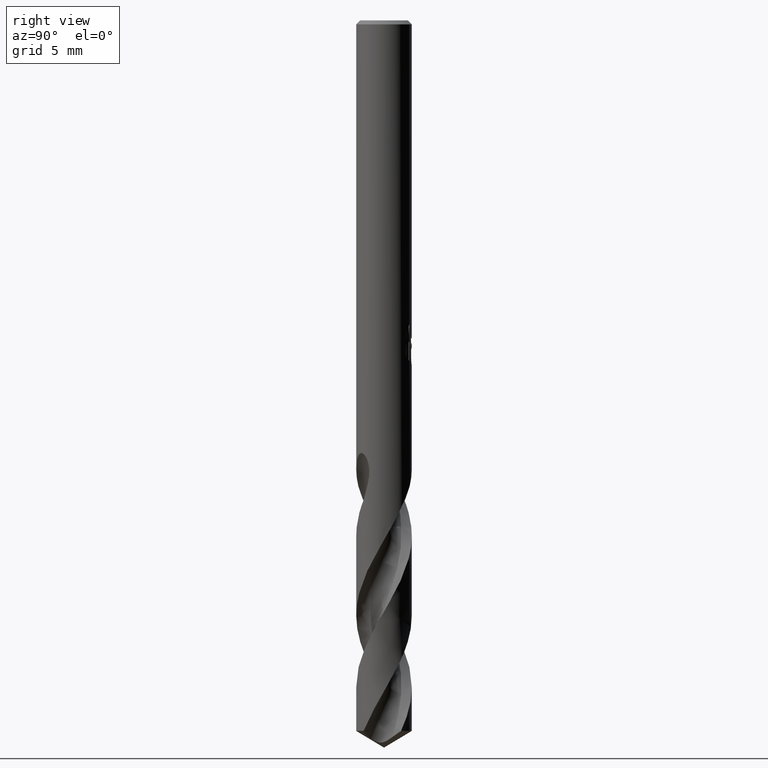
[diagram: clean part render]
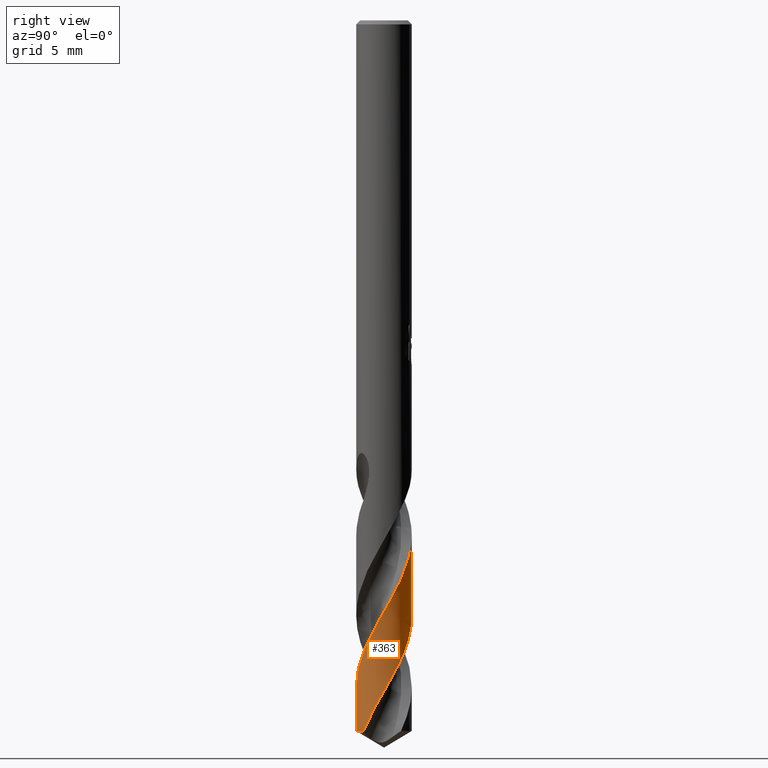
[diagram: same view with one face highlighted and labeled with its STEP entity id]
A machine part, right view. The second image highlights one B-rep face of the part: STEP entity #363.
In plain terms, the highlighted conical surface has half-angle 0 deg.
Its self-contained STEP definition (entity closure, byte-faithful):
#345=VERTEX_POINT('',#849);
#349=VERTEX_POINT('',#853);
#353=EDGE_CURVE('',#387,#587,#857,.T.);
#355=EDGE_CURVE('',#387,#345,#859,.T.);
#363=ADVANCED_FACE('',(#868),#869,.T.);
#387=VERTEX_POINT('',#896);
#431=EDGE_CURVE('',#549,#349,#942,.T.);
#549=VERTEX_POINT('',#1070);
#587=VERTEX_POINT('',#1108);
#659=EDGE_CURVE('',#549,#587,#1188,.T.);
#681=EDGE_CURVE('',#345,#349,#1210,.T.);
#849=CARTESIAN_POINT('',(2.57167334302699E-016,-2.1,-53.7381927000421));
#853=CARTESIAN_POINT('',(1.82200431887341E-012,-2.09997855743736,-50.4278485601338));
#857=B_SPLINE_CURVE_WITH_KNOTS('',3,(#3271,#3272,#3273,#3274,#3275,#3276,#3277,#3278,#3279,#3280,#3281,#3282,#3283,#3284,#3285,#3286,#3287,#3288,#3289,#3290,#3291,#3292,#3293,#3294,#3295,#3296,#3297,#3298,#3299,#3300,#3301,#3302,#3303,#3304,#3305,#3306,#3307,#3308,#3309,#3310,#3311,#3312,#3313,#3314,#3315,#3316,#3317,#3318,#3319,#3320,#3321,#3322,#3323,#3324,#3325,#3326,#3327,#3328,#3329,#3330,#3331,#3332,#3333,#3334,#3335,#3336,#3337,#3338,#3339,#3340),.UNSPECIFIED.,.F.,.F.,(4,2,2,2,2,2,2,2,2,2,2,2,2,2,2,2,2,2,2,2,2,2,2,2,2,2,2,2,2,2,2,2,2,2,4),(0.0,1.23625972363137,1.28090321122033,1.97511493861058,2.38408910006157,2.79224868021224,3.47174309092541,3.81203643253542,4.15063407136372,4.8304169893768,5.17084619576991,5.5096247447825,6.18969503314159,6.53030298078868,6.86930157082664,7.54976232916387,7.89055697128967,8.22975320694208,8.91059984857461,9.25161203651978,9.59105219882193,10.2723489847607,10.6107846645526,11.0201025744312,11.8424205708732,12.5061808573764,13.179368832994,13.7674621848638,14.8004683721552,14.9936553048343,15.72129262502,16.2673242447076,16.3183011420528,17.1083567396331,17.8964530474587),.UNSPECIFIED.);
#859=CIRCLE('',#3343,2.1);
#868=FACE_OUTER_BOUND('',#3373,.T.);
#869=CONICAL_SURFACE('',#3374,2.09995,6.47744214246915E-006);
#896=CARTESIAN_POINT('',(1.42649737981016,-1.54113763999026,-53.7381927000421));
#942=B_SPLINE_CURVE_WITH_KNOTS('',3,(#3818,#3819,#3820,#3821,#3822,#3823,#3824,#3825,#3826,#3827,#3828,#3829,#3830,#3831,#3832,#3833,#3834,#3835,#3836,#3837,#3838,#3839,#3840,#3841,#3842,#3843,#3844,#3845,#3846,#3847,#3848,#3849,#3850,#3851,#3852,#3853,#3854,#3855,#3856,#3857,#3858,#3859,#3860,#3861,#3862,#3863,#3864,#3865,#3866,#3867,#3868,#3869,#3870,#3871),.UNSPECIFIED.,.F.,.F.,(4,2,2,2,2,2,2,2,2,2,2,2,2,2,2,2,2,2,2,2,2,2,2,2,2,2,4),(0.0,0.503909517574547,1.13278829077596,1.95331177067228,2.76910831106794,3.17418707649119,3.98540677428027,4.80004577955351,5.61705185663753,5.8183623159792,6.62775541196274,7.44499739521171,8.26058420225335,8.66412829400666,9.4765814517851,10.2886939562712,11.1063820339444,11.2067594209016,12.0003007756899,12.7277738346585,13.3615420912618,14.4769491323318,14.8951127179593,15.6262919425889,16.1753774826645,17.0001347165072,17.824851671852),.UNSPECIFIED.);
#1070=CARTESIAN_POINT('',(1.05293163295112E-014,2.09990444357236,-38.9860072637856));
#1108=CARTESIAN_POINT('',(-2.17781760784545E-014,2.0999434989582,-45.0154529889263));
#1188=LINE('',#6280,#6281);
#1210=LINE('',#6460,#6461);
#3271=CARTESIAN_POINT('',(1.42649737981016,-1.54113763999026,-53.7381927000421));
#3272=CARTESIAN_POINT('',(1.57695963555635,-1.40186463124455,-53.3807301375969));
#3273=CARTESIAN_POINT('',(1.7062555505519,-1.24129005562574,-53.0293134088244));
#3274=CARTESIAN_POINT('',(1.81403925219164,-1.05796369571468,-52.6594367109165));
#3275=CARTESIAN_POINT('',(1.81775758434648,-1.05156196970137,-52.6465537487394));
#3276=CARTESIAN_POINT('',(1.87879164146405,-0.945189934888155,-52.4332394702534));
#3277=CARTESIAN_POINT('',(1.92791238908589,-0.840527310665277,-52.233800074898));
#3278=CARTESIAN_POINT('',(1.99198013464477,-0.6682865586203,-51.9157455633596));
#3279=CARTESIAN_POINT('',(2.01258782088006,-0.603374997257038,-51.7980066032897));
#3280=CARTESIAN_POINT('',(2.0473702503674,-0.472039582839114,-51.5622762667787));
#3281=CARTESIAN_POINT('',(2.0615318174246,-0.405726797584941,-51.4442099031526));
#3282=CARTESIAN_POINT('',(2.09066250884726,-0.227553599199668,-51.1305784846301));
#3283=CARTESIAN_POINT('',(2.09988608494626,-0.114830843375427,-50.9356141483307));
#3284=CARTESIAN_POINT('',(2.10002678837447,0.0548590835475572,-50.6418465286291));
#3285=CARTESIAN_POINT('',(2.09778345263759,0.111399100639425,-50.5439079627778));
#3286=CARTESIAN_POINT('',(2.08878005726924,0.2237543038227,-50.3481971422091));
#3287=CARTESIAN_POINT('',(2.08204988452058,0.279516763301855,-50.2503728275425));
#3288=CARTESIAN_POINT('',(2.05509471977611,0.446323205888845,-49.9568442262517));
#3289=CARTESIAN_POINT('',(2.02814153057,0.556162342423216,-49.7618710554556));
#3290=CARTESIAN_POINT('',(1.97453338299503,0.717152403648562,-49.4681023592493));
#3291=CARTESIAN_POINT('',(1.95449947977277,0.770067980556316,-49.3701643641222));
#3292=CARTESIAN_POINT('',(1.91037407762961,0.87378921552454,-49.17444414723));
#3293=CARTESIAN_POINT('',(1.88632768759972,0.924552416393177,-49.0766078489583));
#3294=CARTESIAN_POINT('',(1.80793616538315,1.07422082583746,-48.7830796763267));
#3295=CARTESIAN_POINT('',(1.74758831615771,1.16986200744209,-48.5881162668004));
#3296=CARTESIAN_POINT('',(1.64575179876274,1.3055876949273,-48.2943594173232));
#3297=CARTESIAN_POINT('',(1.60998647309493,1.34943891388325,-48.1964196709686));
#3298=CARTESIAN_POINT('',(1.53526775205499,1.43386168511031,-48.0006855539662));
#3299=CARTESIAN_POINT('',(1.49637147667734,1.47440516537982,-47.9028367517366));
#3300=CARTESIAN_POINT('',(1.37460150228181,1.5915475689214,-47.6092976514275));
#3301=CARTESIAN_POINT('',(1.28706411870783,1.66315261922107,-47.4143303821041));
#3302=CARTESIAN_POINT('',(1.14747920106533,1.75963568382289,-47.1205693453376));
#3303=CARTESIAN_POINT('',(1.09966634701289,1.78990047771627,-47.0226295929395));
#3304=CARTESIAN_POINT('',(1.00205445100528,1.84631023132247,-46.8268918827832));
#3305=CARTESIAN_POINT('',(0.95232019949124,1.87244537401513,-46.7290378468674));
#3306=CARTESIAN_POINT('',(0.799737721795813,1.94497735542391,-46.4355074330202));
#3307=CARTESIAN_POINT('',(0.694039658147727,1.98516645703929,-46.2405493357547));
#3308=CARTESIAN_POINT('',(0.531090396180356,2.03247074053207,-45.9467992665382));
#3309=CARTESIAN_POINT('',(0.476152580325007,2.0460344094639,-45.8488592648506));
#3310=CARTESIAN_POINT('',(0.365691400592973,2.06862591848246,-45.653114063439));
#3311=CARTESIAN_POINT('',(0.310234438902006,2.07766407194054,-45.5552520035473));
#3312=CARTESIAN_POINT('',(0.142543847878263,2.09813363650411,-45.2617240998199));
#3313=CARTESIAN_POINT('',(0.0295639793424587,2.1027768431097,-45.0667692658357));
#3314=CARTESIAN_POINT('',(-0.139510843648268,2.09605500249925,-44.7738377936024));
#3315=CARTESIAN_POINT('',(-0.195455306242008,2.09157633347284,-44.6767053777307));
#3316=CARTESIAN_POINT('',(-0.318391114097939,2.07676888609087,-44.4617573231829));
#3317=CARTESIAN_POINT('',(-0.385183478969309,2.0654229015879,-44.3437879224724));
#3318=CARTESIAN_POINT('',(-0.584355139379804,2.02158455836716,-43.9897319765663));
#3319=CARTESIAN_POINT('',(-0.714225411483557,1.97944115235996,-43.754999634814));
#3320=CARTESIAN_POINT('',(-0.940015267402545,1.881008153717,-43.3280489178754));
#3321=CARTESIAN_POINT('',(-1.03716150378071,1.82923487286746,-43.136664401182));
#3322=CARTESIAN_POINT('',(-1.22386191627464,1.71005898117993,-42.7525623711583));
#3323=CARTESIAN_POINT('',(-1.3129537391771,1.64264916213854,-42.5600619399365));
#3324=CARTESIAN_POINT('',(-1.46908480422251,1.5036541185711,-42.1977905447299));
#3325=CARTESIAN_POINT('',(-1.5371943000117,1.43393912739426,-42.0283045161195));
#3326=CARTESIAN_POINT('',(-1.71086181131527,1.22956418471215,-41.5627799455542));
#3327=CARTESIAN_POINT('',(-1.80512779756698,1.08641681909547,-41.2694085627594));
#3328=CARTESIAN_POINT('',(-1.89518658034008,0.904951786815829,-40.9172578281285));
#3329=CARTESIAN_POINT('',(-1.90870234775765,0.876083172479937,-40.8617259489846));
#3330=CARTESIAN_POINT('',(-1.96999561379248,0.737009407009232,-40.5973910990127));
#3331=CARTESIAN_POINT('',(-2.008990061536,0.622989305073594,-40.3895858146518));
#3332=CARTESIAN_POINT('',(-2.05981638624216,0.418282086342408,-40.0244444312444));
#3333=CARTESIAN_POINT('',(-2.07587731915084,0.329357783691682,-39.8682877421538));
#3334=CARTESIAN_POINT('',(-2.08712909993059,0.231475506267614,-39.6969370408301));
#3335=CARTESIAN_POINT('',(-2.08804213814309,0.223090127908711,-39.6822731464761));
#3336=CARTESIAN_POINT('',(-2.10230857101246,0.0842544404708582,-39.4397367522625));
#3337=CARTESIAN_POINT('',(-2.10347877727317,-0.0472285153184,-39.2136911345351));
#3338=CARTESIAN_POINT('',(-2.08122703491903,-0.308625523702236,-38.7590045767613));
#3339=CARTESIAN_POINT('',(-2.05803234571003,-0.437053267206126,-38.5306473119862));
#3340=CARTESIAN_POINT('',(-2.02318675090137,-0.562401559440356,-38.3048920733307));
#3343=AXIS2_PLACEMENT_3D('',#6977,#6978,#6979);
#3373=EDGE_LOOP('',(#6992,#6993,#6994,#6995,#6996));
#3374=AXIS2_PLACEMENT_3D('',#6997,#6998,#6999);
#3818=CARTESIAN_POINT('',(-0.390569997594199,2.06325839454656,-38.3042526002693));
#3819=CARTESIAN_POINT('',(-0.308017328981754,2.07888638085567,-38.4496991190551));
#3820=CARTESIAN_POINT('',(-0.224716797414764,2.08952430822793,-38.5951383021161));
#3821=CARTESIAN_POINT('',(-0.0367738697070147,2.10218470279236,-38.9223348095377));
#3822=CARTESIAN_POINT('',(0.0679943548223225,2.1014125386136,-39.1038875241836));
#3823=CARTESIAN_POINT('',(0.308420416765696,2.08161981318001,-39.5224390259626));
#3824=CARTESIAN_POINT('',(0.443125247664701,2.05716336438881,-39.7583208057964));
#3825=CARTESIAN_POINT('',(0.705158396426087,1.98263238876949,-40.2307940575602));
#3826=CARTESIAN_POINT('',(0.83190241340748,1.93288221021511,-40.4658503359491));
#3827=CARTESIAN_POINT('',(1.01307412056442,1.84061942340005,-40.8183438684808));
#3828=CARTESIAN_POINT('',(1.0716539799307,1.80713978555512,-40.9351926540121));
#3829=CARTESIAN_POINT('',(1.24236193159677,1.69835944984499,-41.2864610840434));
#3830=CARTESIAN_POINT('',(1.34899979233984,1.61496761456619,-41.5203685039314));
#3831=CARTESIAN_POINT('',(1.54524320152569,1.42839464262323,-41.9898332915733));
#3832=CARTESIAN_POINT('',(1.63425164408587,1.32562957329259,-42.2243981246286));
#3833=CARTESIAN_POINT('',(1.79139311721516,1.10412984761005,-42.6956394381113));
#3834=CARTESIAN_POINT('',(1.85914717509632,0.985797811534195,-42.9309759307475));
#3835=CARTESIAN_POINT('',(1.9287509875177,0.831118521850243,-43.2250018293224));
#3836=CARTESIAN_POINT('',(1.94177287528001,0.800223203744916,-43.2831057049999));
#3837=CARTESIAN_POINT('',(2.00340353810151,0.643630062038408,-43.5750011471479));
#3838=CARTESIAN_POINT('',(2.04058122781645,0.513741696455881,-43.8084848758363));
#3839=CARTESIAN_POINT('',(2.08976059867549,0.247325397060538,-44.2782629813409));
#3840=CARTESIAN_POINT('',(2.10139018064231,0.11142495759151,-44.5135340024606));
#3841=CARTESIAN_POINT('',(2.09820825066363,-0.160362996487476,-44.9851936783112));
#3842=CARTESIAN_POINT('',(2.08345659852405,-0.295700457575004,-45.220218516835));
#3843=CARTESIAN_POINT('',(2.04199424980129,-0.494527163580685,-45.5722820104595));
#3844=CARTESIAN_POINT('',(2.02512257746547,-0.559618893713002,-45.6887212446519));
#3845=CARTESIAN_POINT('',(1.96498983138337,-0.752928513352516,-46.0399799880111));
#3846=CARTESIAN_POINT('',(1.91241331188645,-0.877947658710558,-46.2742468673307));
#3847=CARTESIAN_POINT('',(1.78391237969355,-1.11614102757357,-46.7434441839002));
#3848=CARTESIAN_POINT('',(1.70833867064282,-1.22868832091192,-46.9774472622816));
#3849=CARTESIAN_POINT('',(1.53608485668596,-1.43833375445415,-47.4482692455468));
#3850=CARTESIAN_POINT('',(1.43960924033543,-1.53490051129748,-47.6838124181654));
#3851=CARTESIAN_POINT('',(1.321507225452,-1.63209706538166,-47.9489523222406));
#3852=CARTESIAN_POINT('',(1.3084704376412,-1.64256748901824,-47.9779373217326));
#3853=CARTESIAN_POINT('',(1.19127302071254,-1.73441352497904,-48.2361479431881));
#3854=CARTESIAN_POINT('',(1.07975895693308,-1.80594882532416,-48.465164141933));
#3855=CARTESIAN_POINT('',(0.854553731773414,-1.92205407758845,-48.9045503207989));
#3856=CARTESIAN_POINT('',(0.742261008866604,-1.96814586759155,-49.1140479194553));
#3857=CARTESIAN_POINT('',(0.525909644256467,-2.03579030583122,-49.5073394487969));
#3858=CARTESIAN_POINT('',(0.422928298244704,-2.05965249702959,-49.690292527835));
#3859=CARTESIAN_POINT('',(0.134908090752099,-2.10386084264738,-50.1956201854131));
#3860=CARTESIAN_POINT('',(-0.0516646682030184,-2.10754555453304,-50.5163525464275));
#3861=CARTESIAN_POINT('',(-0.305438755868367,-2.07881726259357,-50.9594372735983));
#3862=CARTESIAN_POINT('',(-0.374222788233564,-2.06754445813261,-51.0801652025259));
#3863=CARTESIAN_POINT('',(-0.56144113396854,-2.02720611661357,-51.4121744257439));
#3864=CARTESIAN_POINT('',(-0.678040335481793,-1.99123727765024,-51.6229029141589));
#3865=CARTESIAN_POINT('',(-0.875520497613397,-1.91096184202637,-51.9928350215167));
#3866=CARTESIAN_POINT('',(-0.957902073938739,-1.87102879304775,-52.1513464280765));
#3867=CARTESIAN_POINT('',(-1.15690666980296,-1.75795759522303,-52.548246383717));
#3868=CARTESIAN_POINT('',(-1.26941257676202,-1.67852228779214,-52.7858535920592));
#3869=CARTESIAN_POINT('',(-1.47725957592945,-1.4988531041612,-53.2624188551758));
#3870=CARTESIAN_POINT('',(-1.57214712177304,-1.39901384195969,-53.4999757723631));
#3871=CARTESIAN_POINT('',(-1.65662077604711,-1.29058421049115,-53.7381927000421));
#6280=CARTESIAN_POINT('',(-2.57654992649596E-016,2.09995,-46.0190963500211));
#6281=VECTOR('',#7294,1.0);
#6460=CARTESIAN_POINT('',(2.56667429892265E-016,-2.09995,-46.0190963500211));
#6461=VECTOR('',#7300,1.0);
#6977=CARTESIAN_POINT('',(0.0,0.0,-53.7381927000421));
#6978=DIRECTION('',(0.0,0.0,-1.0));
#6979=DIRECTION('',(0.0,1.0,0.0));
#6992=ORIENTED_EDGE('',*,*,#659,.F.);
#6993=ORIENTED_EDGE('',*,*,#431,.T.);
#6994=ORIENTED_EDGE('',*,*,#681,.F.);
#6995=ORIENTED_EDGE('',*,*,#355,.F.);
#6996=ORIENTED_EDGE('',*,*,#353,.T.);
#6997=CARTESIAN_POINT('',(0.0,0.0,-46.0190963500211));
#6998=DIRECTION('',(0.0,-0.0,-1.0));
#6999=DIRECTION('',(0.0,1.0,0.0));
#7294=DIRECTION('',(-7.93231680412909E-022,6.47744214242386E-006,-0.999999999979021));
#7300=DIRECTION('',(-7.93231680412909E-022,6.47744214242386E-006,0.999999999979021));